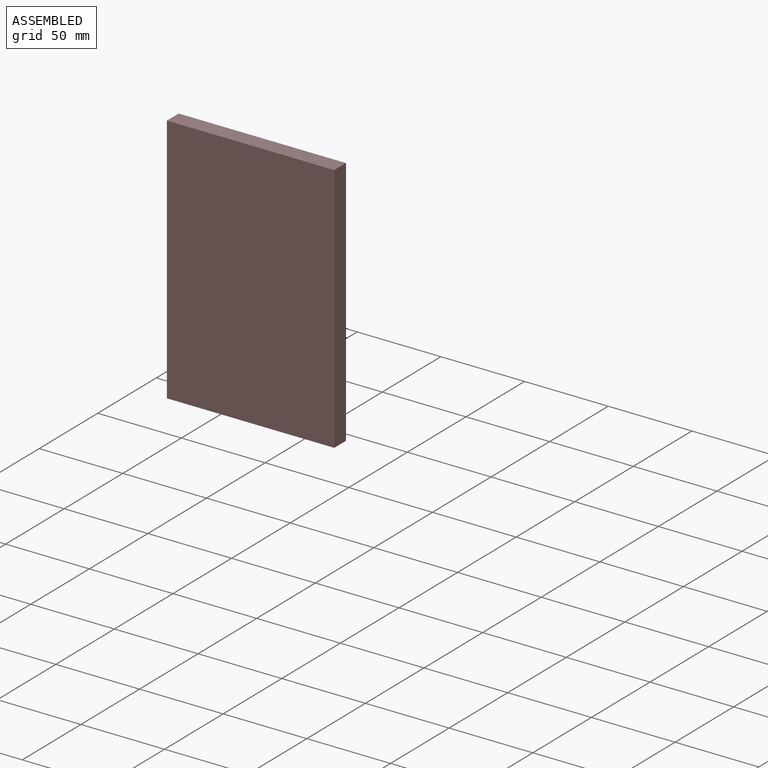
[diagram: assembled view]
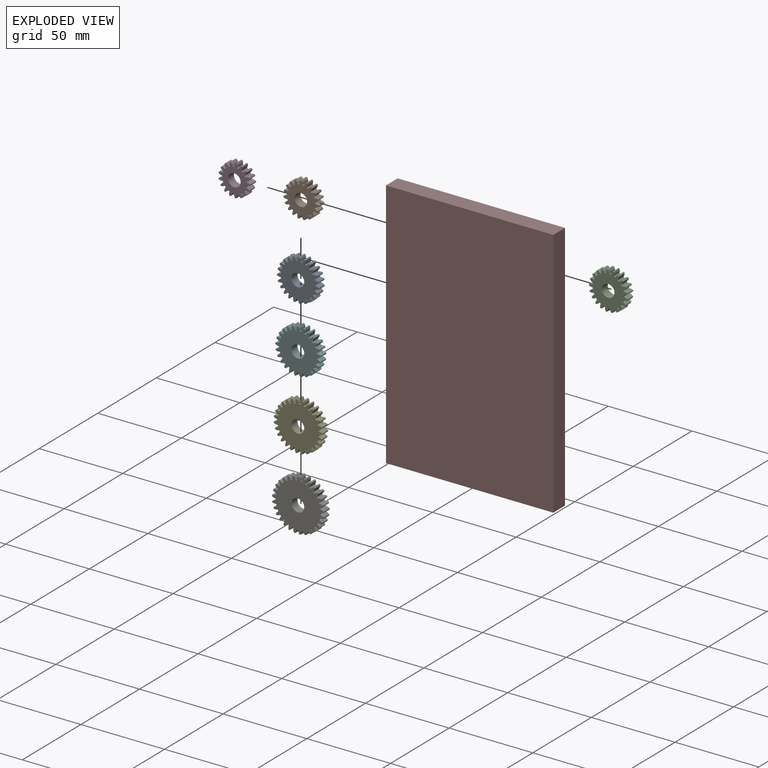
[diagram: exploded view]
GUIDED TOUR — MATED ASSEMBLY (Onshape document 5774c9e2e4b0199757aebff8, AutoMate assembly 5774c9e2e4b0199757aebff8_927d8f8215b882e46c53c789_11457338b5771209f72d90a7_default)

This assembly has 8 components, labeled P0..P7 below (a component is one placed occurrence of a part; the same part can appear more than once), held together by 7 mates. A mate is a constraint between two components; its type names the relative motion it leaves free:
  REVOLUTE — leaves rotation about the listed axis free (a hinge).
Axis/direction vectors are unit vectors and 'through' points are millimeter coordinates, both in the assembly's world frame.

MATES
  1. REVOLUTE "Revolute 1": P7 <-> P3, axis (0.000, 1.000, 0.000) through (-74.08, -13.23, 81.41) mm
  2. REVOLUTE "Revolute 4": P7 <-> P0, axis (0.000, 1.000, 0.000) through (-36.08, -13.23, 59.41) mm
  3. REVOLUTE "Revolute 3": P7 <-> P2, axis (0.000, -1.000, 0.000) through (-36.08, -13.23, 81.41) mm
  4. REVOLUTE "Revolute 6": P7 <-> P4, axis (0.000, 1.000, 0.000) through (-36.08, -13.23, 9.41) mm
  5. REVOLUTE "Revolute 7": P7 <-> P6, axis (0.000, -1.000, 0.000) through (-36.08, -13.23, -18.59) mm
  6. REVOLUTE "Revolute 2": P7 <-> P1, axis (0.000, -1.000, 0.000) through (-56.08, -13.23, 81.41) mm
  7. REVOLUTE "Revolute 5": P7 <-> P5, axis (0.000, 1.000, 0.000) through (-36.08, -13.23, 35.41) mm

ASSEMBLY ORDER
  1. P3 — the base component [order verified]
  2. P1 [order verified]
  3. P2 [order verified]
  4. P0 [order verified]
  5. P5 [order verified]
  6. P4 [order verified]
  7. P6 [order verified]
  8. P7 [order verified]
(P1 verified with a relaxed clearance tolerance: the source model stores slight part interference there.)
Order-tag legend:
  [order verified] — this step's position reverses a verified removal order: the component was checked to insert without passing through the ones already placed.

Of the 8 components, 1 carries the full construction recipe — the FeatureScript program that regenerates the part's solid from scratch; the rest are supplied as boundary geometry only.
Each toured component is shown spotlighted twice — in the assembled view, then in the exploded view, where a leader line traces a displaced component back to its assembled socket (saturated green if recipe-attached, orange if geometry-only; every other component desaturated gray) — followed by its recipe or geometry summary and the mates that hold it.
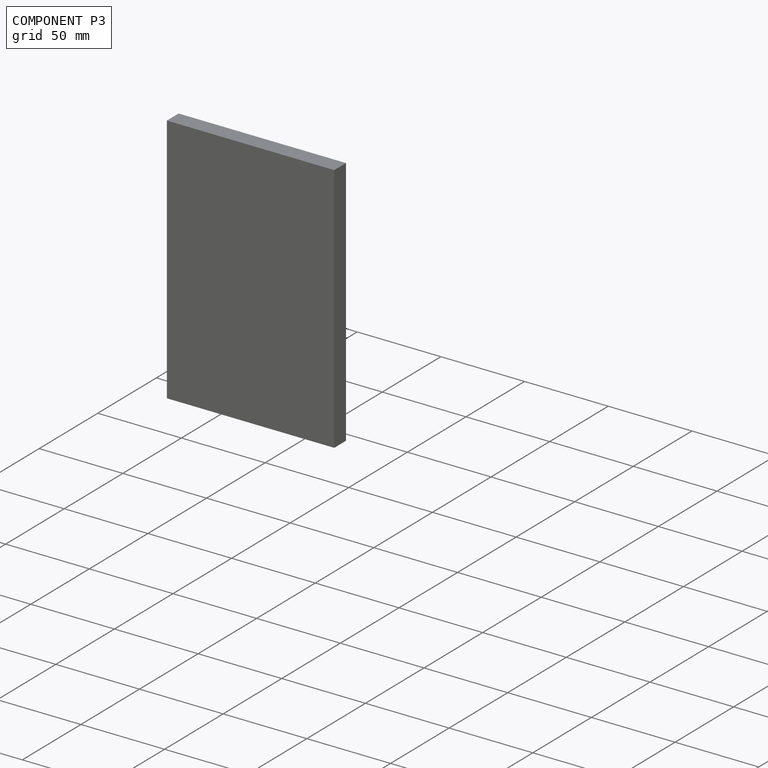
[diagram: component P3 — assembled]
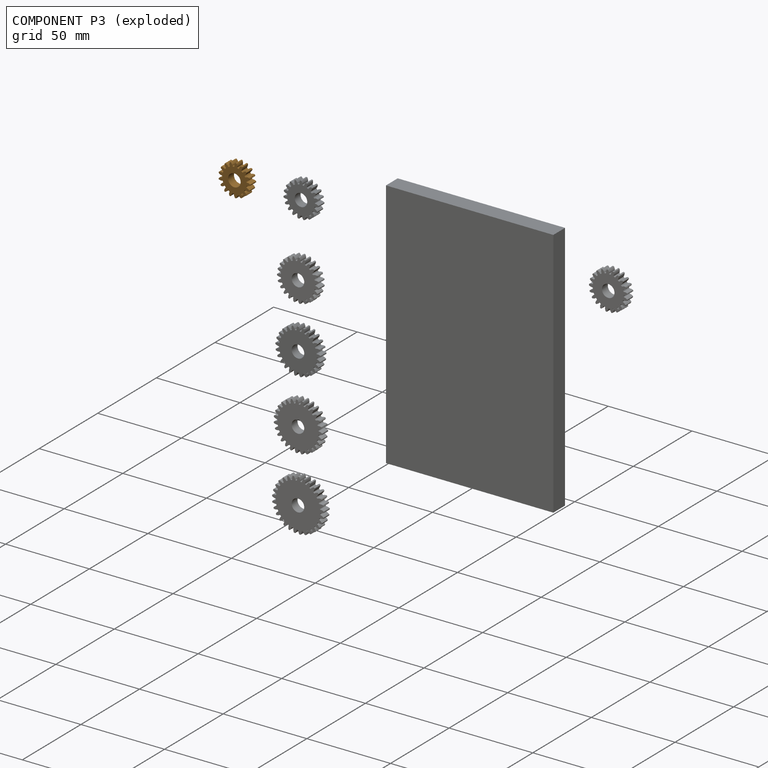
[diagram: component P3 — exploded]
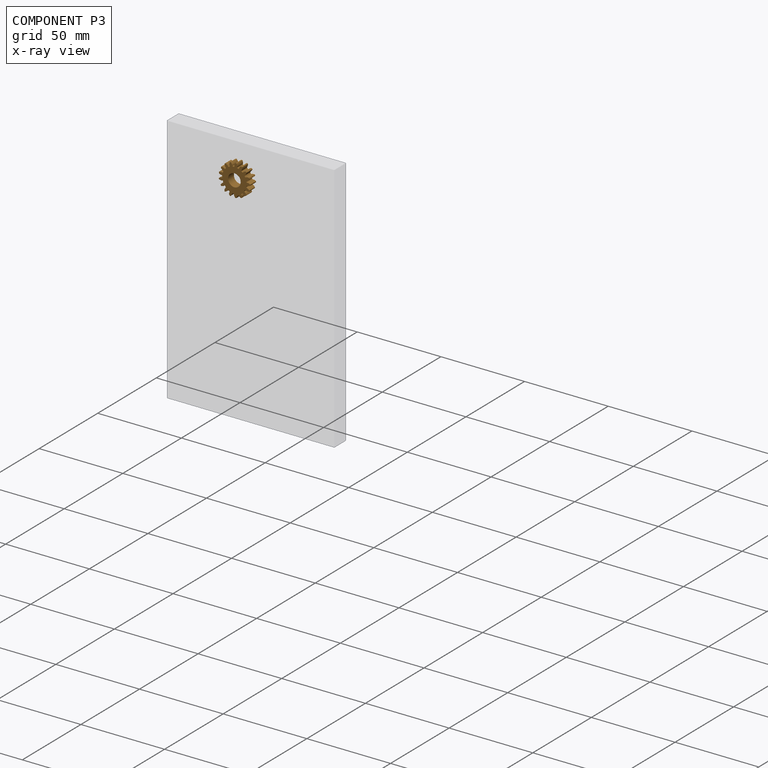
[diagram: component P3 — x-ray view]
COMPONENT P3 — geometry summary (no construction recipe available for this part):
  bounding box: 19.0 x 18.9 x 5.0 mm
  B-rep topology: 1 solid, 105 faces, 618 edges
  volume: 885 mm^3 (49% of its bounding box)
  symmetry: 2-fold rotationally symmetric about the x axis; mirror-symmetric across its y mid-plane, z mid-plane
Held by: REVOLUTE mate "Revolute 1" to P7.
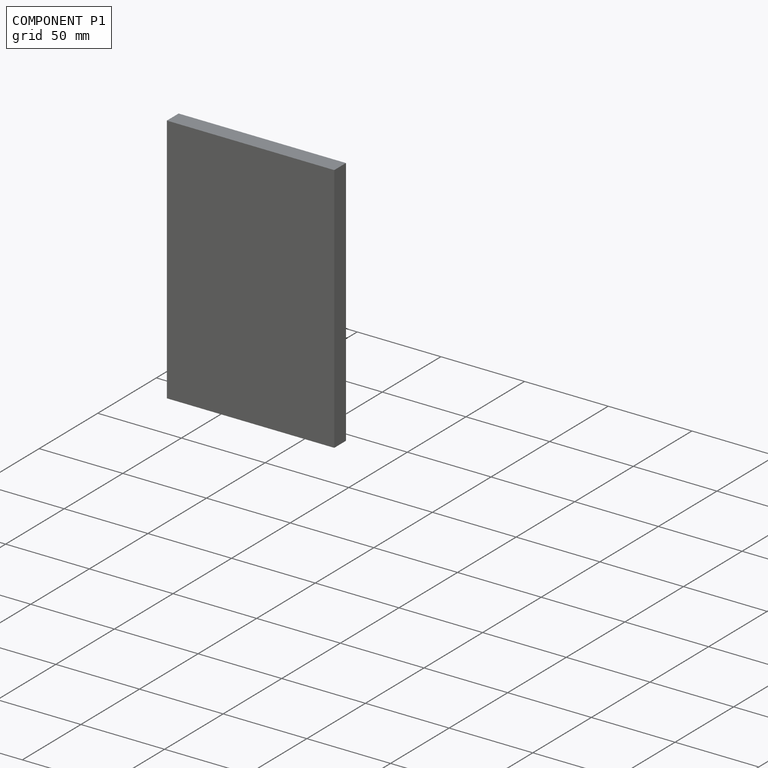
[diagram: component P1 — assembled]
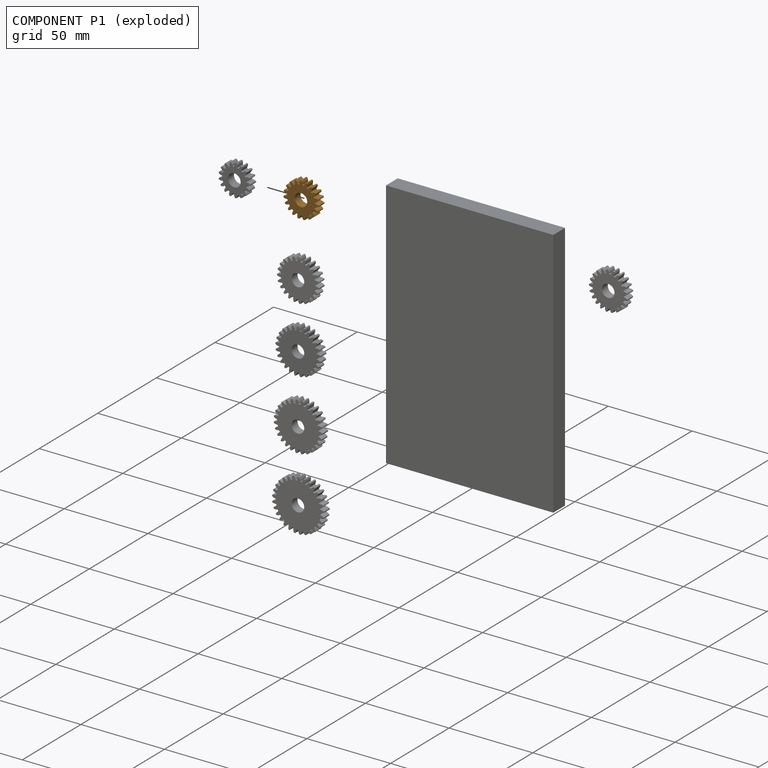
[diagram: component P1 — exploded]
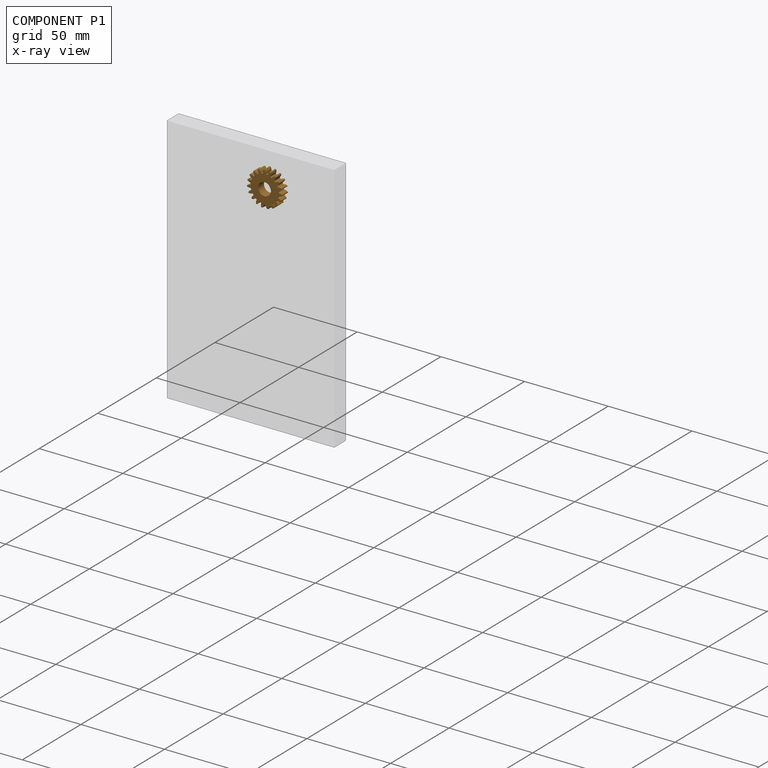
[diagram: component P1 — x-ray view]
COMPONENT P1 — geometry summary (no construction recipe available for this part):
  bounding box: 21.0 x 20.9 x 5.0 mm
  B-rep topology: 1 solid, 117 faces, 690 edges
  volume: 1165 mm^3 (53% of its bounding box)
  symmetry: 2-fold rotationally symmetric about the x axis; mirror-symmetric across its y mid-plane, z mid-plane
Held by: REVOLUTE mate "Revolute 2" to P7.
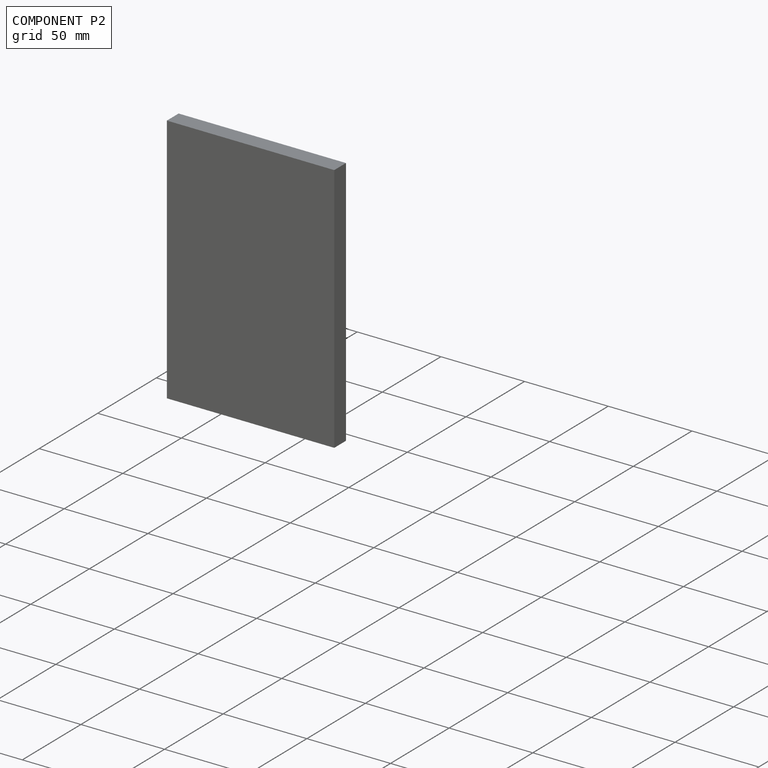
[diagram: component P2 — assembled]
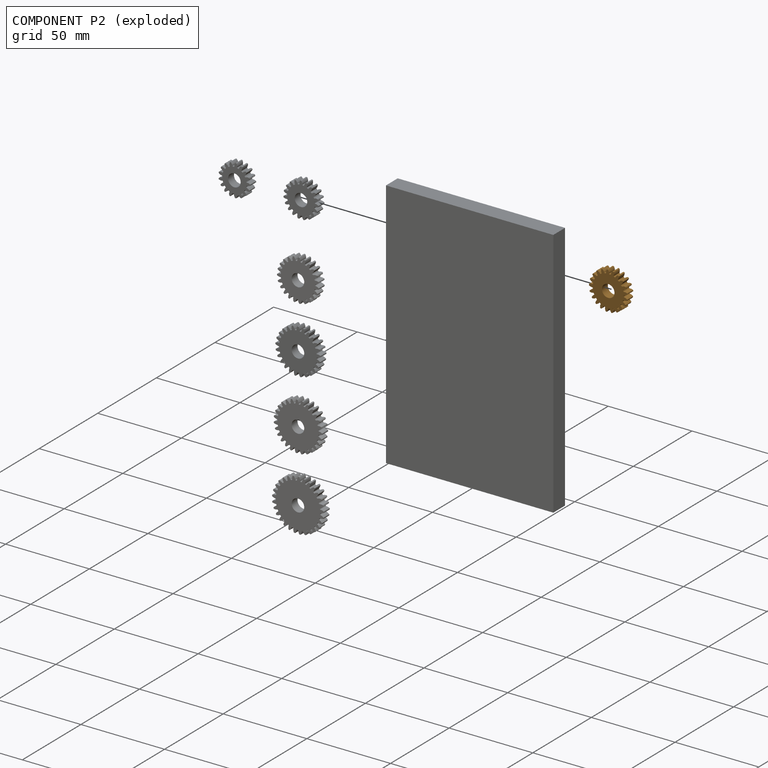
[diagram: component P2 — exploded]
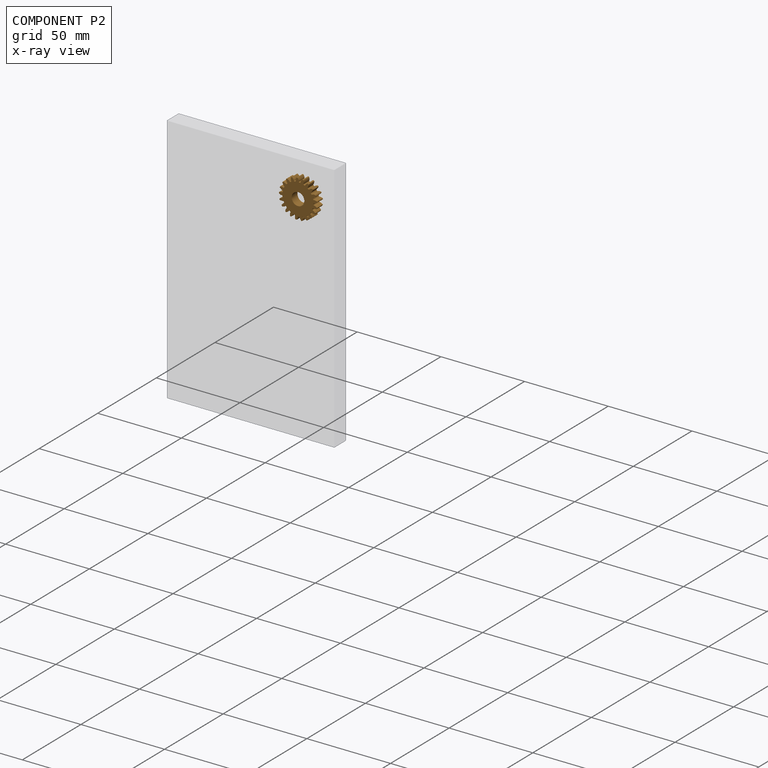
[diagram: component P2 — x-ray view]
COMPONENT P2 — geometry summary (no construction recipe available for this part):
  bounding box: 23.0 x 22.9 x 5.0 mm
  B-rep topology: 1 solid, 129 faces, 762 edges
  volume: 1477 mm^3 (56% of its bounding box)
  symmetry: 2-fold rotationally symmetric about the x axis; revolution-symmetric about the y axis through its bounding-box center; mirror-symmetric across its y mid-plane, z mid-plane
Held by: REVOLUTE mate "Revolute 3" to P7.
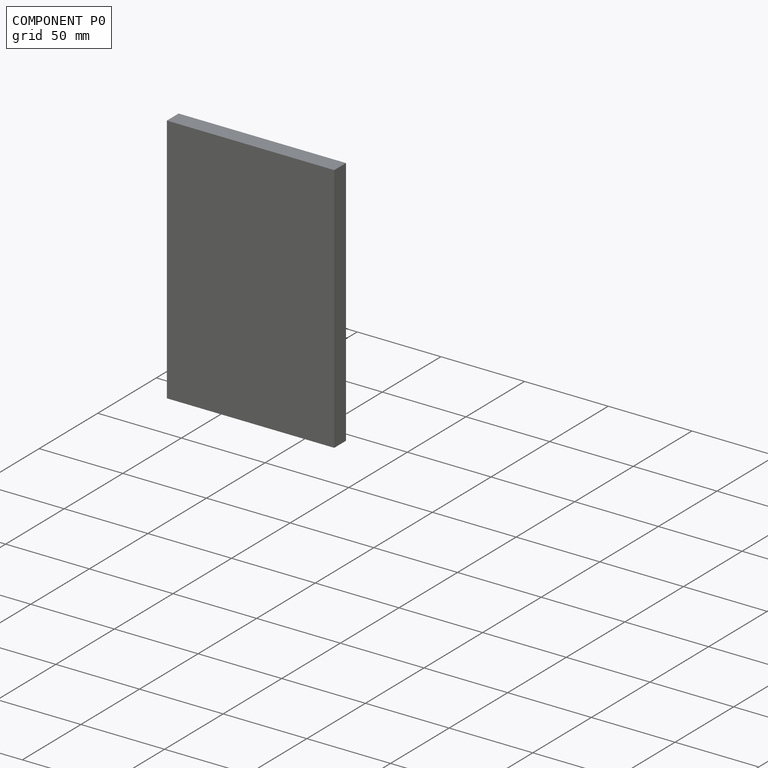
[diagram: component P0 — assembled]
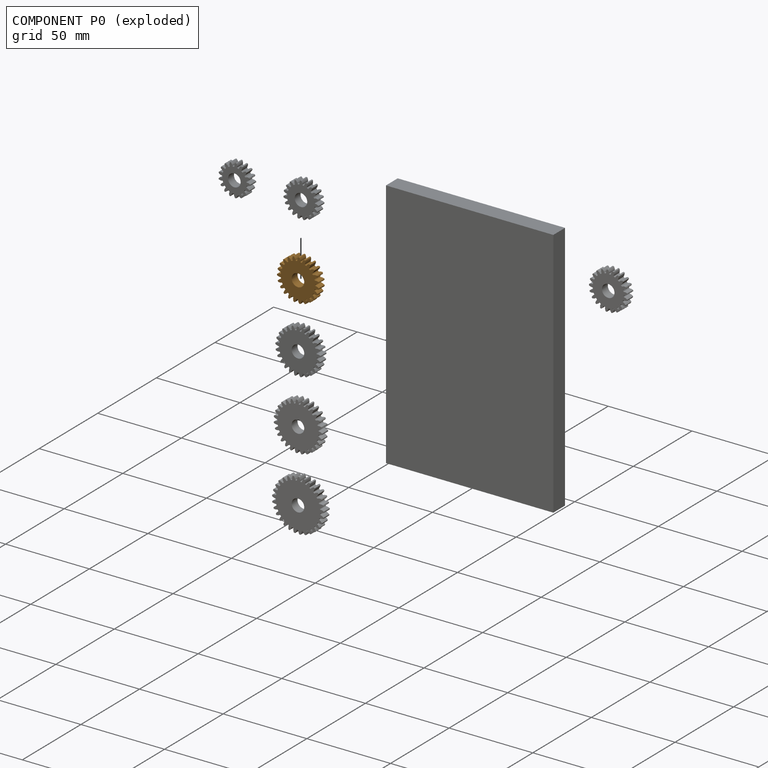
[diagram: component P0 — exploded]
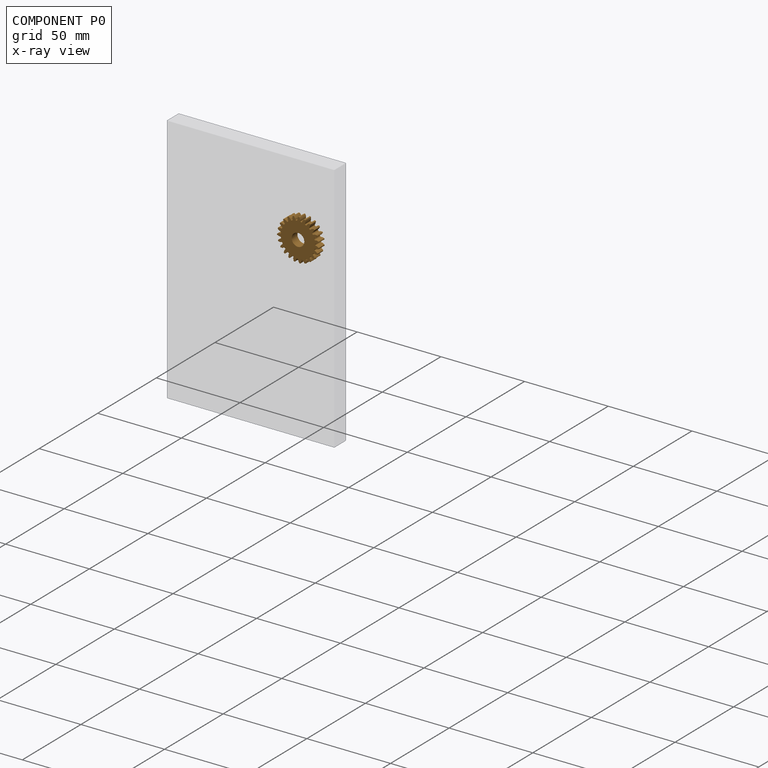
[diagram: component P0 — x-ray view]
COMPONENT P0 — geometry summary (no construction recipe available for this part):
  bounding box: 25.0 x 24.9 x 5.0 mm
  B-rep topology: 1 solid, 141 faces, 834 edges
  volume: 1821 mm^3 (58% of its bounding box)
  symmetry: 2-fold rotationally symmetric about the x axis; mirror-symmetric across its y mid-plane, z mid-plane
Held by: REVOLUTE mate "Revolute 4" to P7.
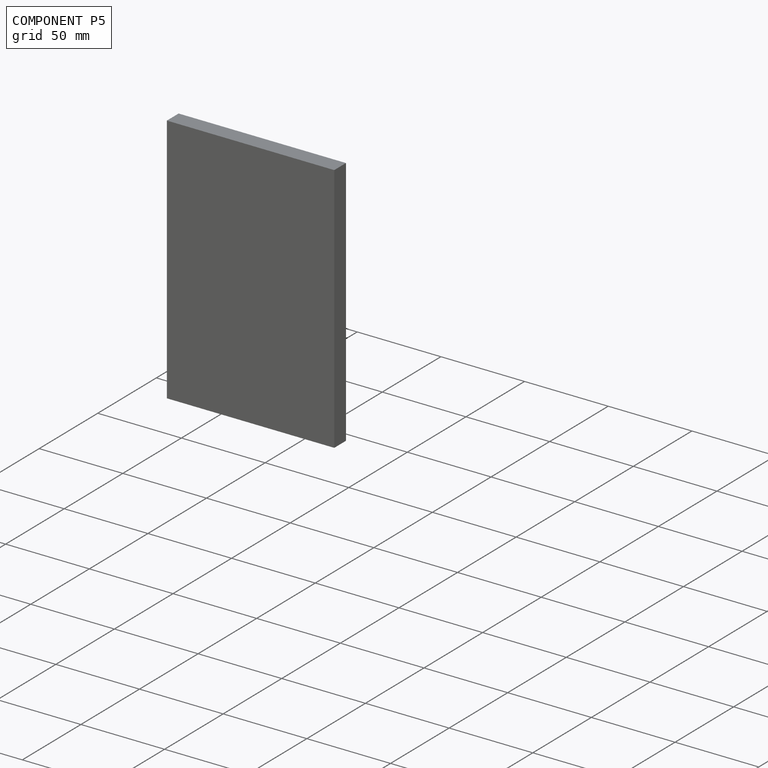
[diagram: component P5 — assembled]
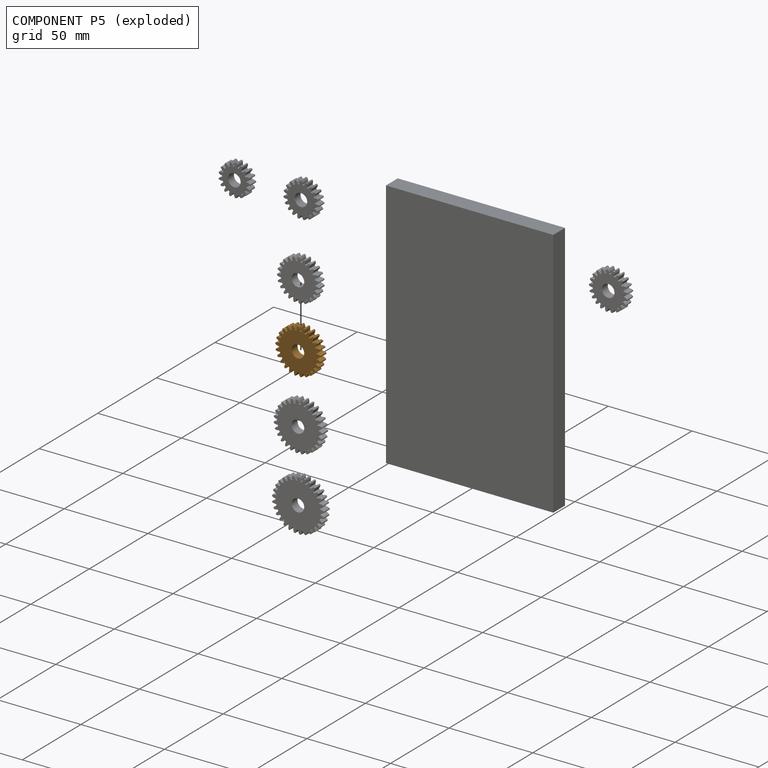
[diagram: component P5 — exploded]
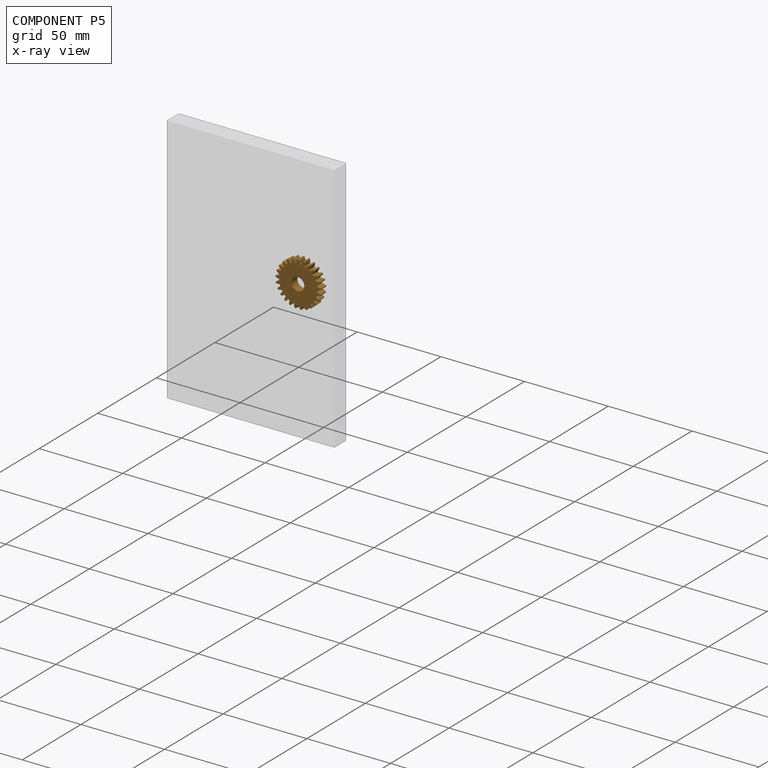
[diagram: component P5 — x-ray view]
COMPONENT P5 — geometry summary (no construction recipe available for this part):
  bounding box: 27.0 x 26.9 x 5.0 mm
  B-rep topology: 1 solid, 153 faces, 906 edges
  volume: 2196 mm^3 (60% of its bounding box)
  symmetry: 2-fold rotationally symmetric about the x axis; mirror-symmetric across its y mid-plane, z mid-plane
Held by: REVOLUTE mate "Revolute 5" to P7.
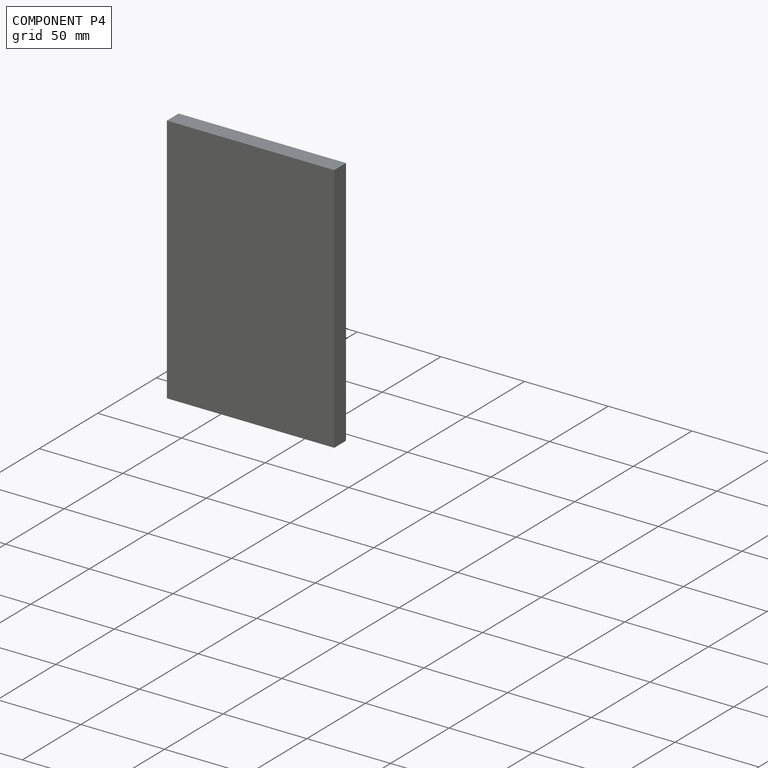
[diagram: component P4 — assembled]
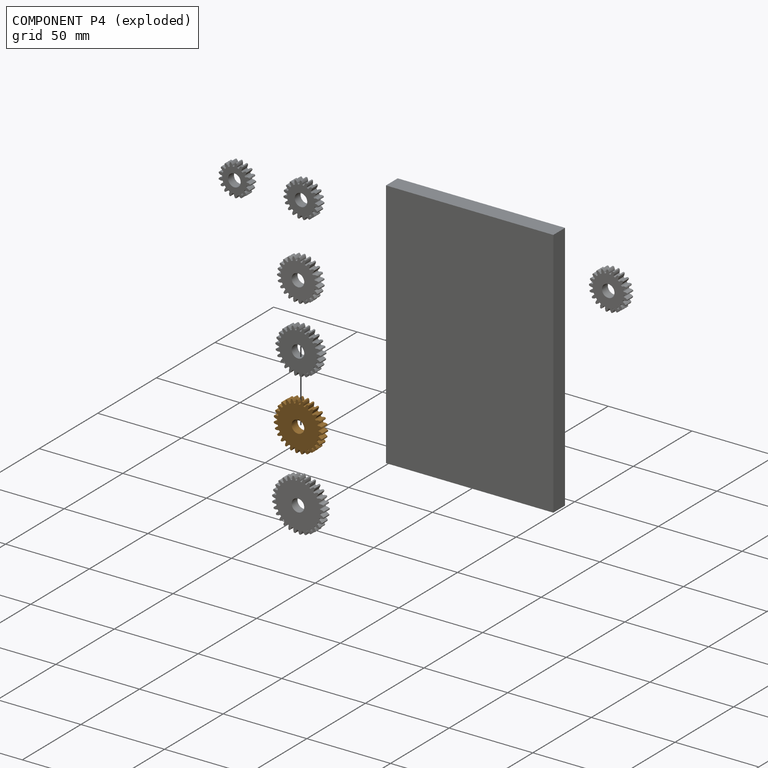
[diagram: component P4 — exploded]
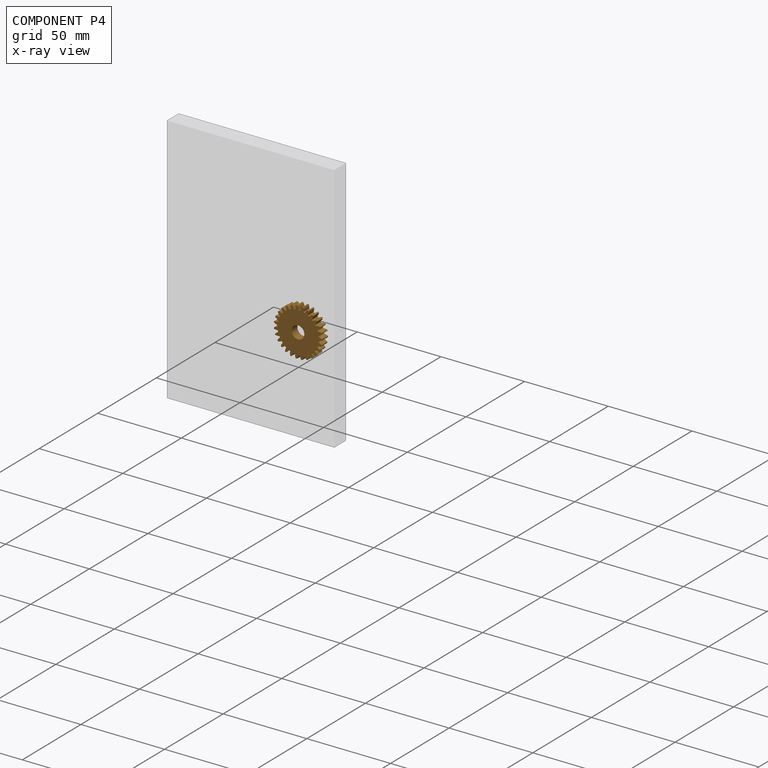
[diagram: component P4 — x-ray view]
COMPONENT P4 — geometry summary (no construction recipe available for this part):
  bounding box: 29.0 x 28.9 x 5.0 mm
  B-rep topology: 1 solid, 165 faces, 978 edges
  volume: 2603 mm^3 (62% of its bounding box)
  symmetry: 2-fold rotationally symmetric about the x axis; 3-fold rotationally symmetric about the y axis; mirror-symmetric across its y mid-plane, z mid-plane
Held by: REVOLUTE mate "Revolute 6" to P7.
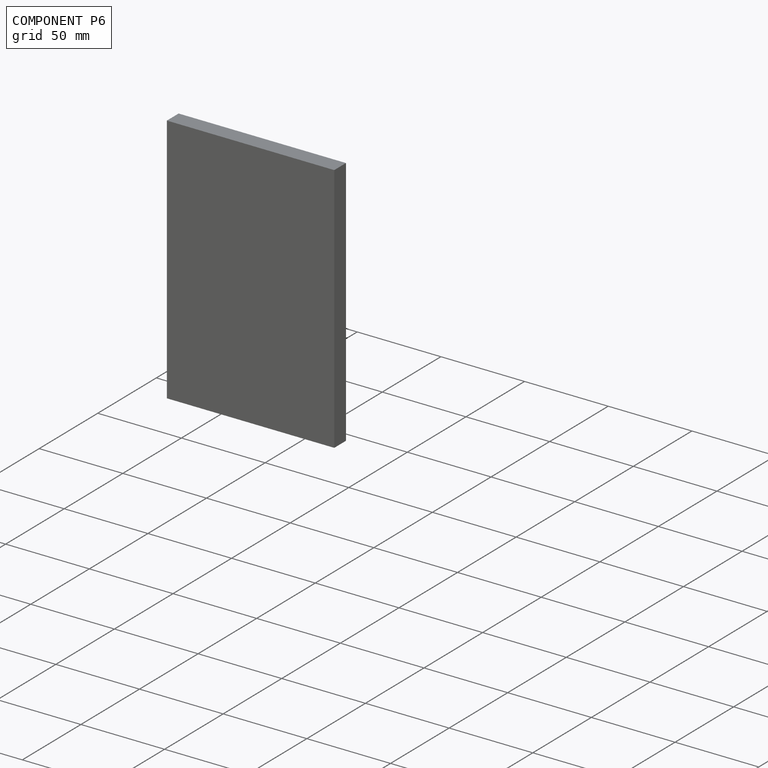
[diagram: component P6 — assembled]
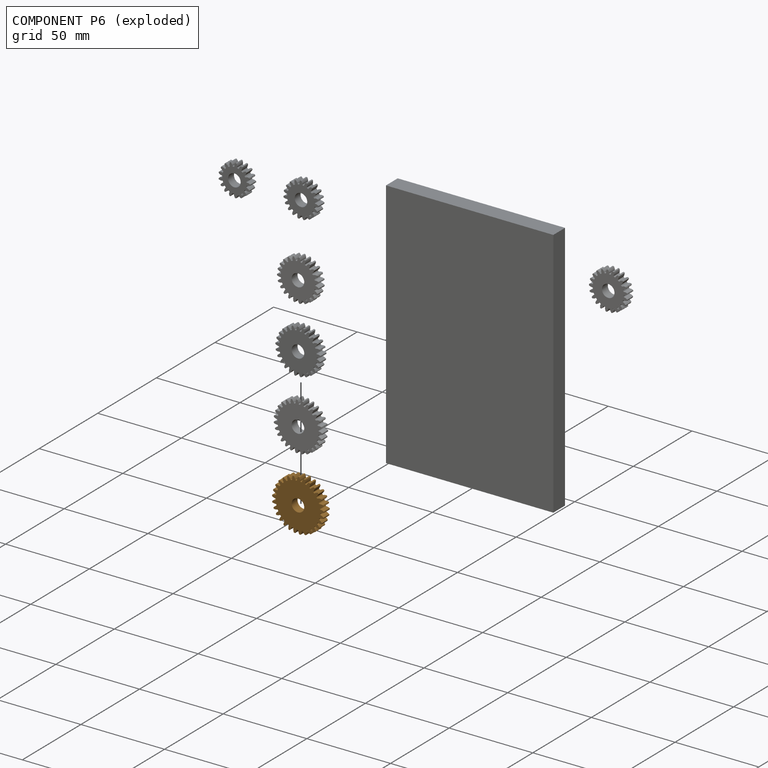
[diagram: component P6 — exploded]
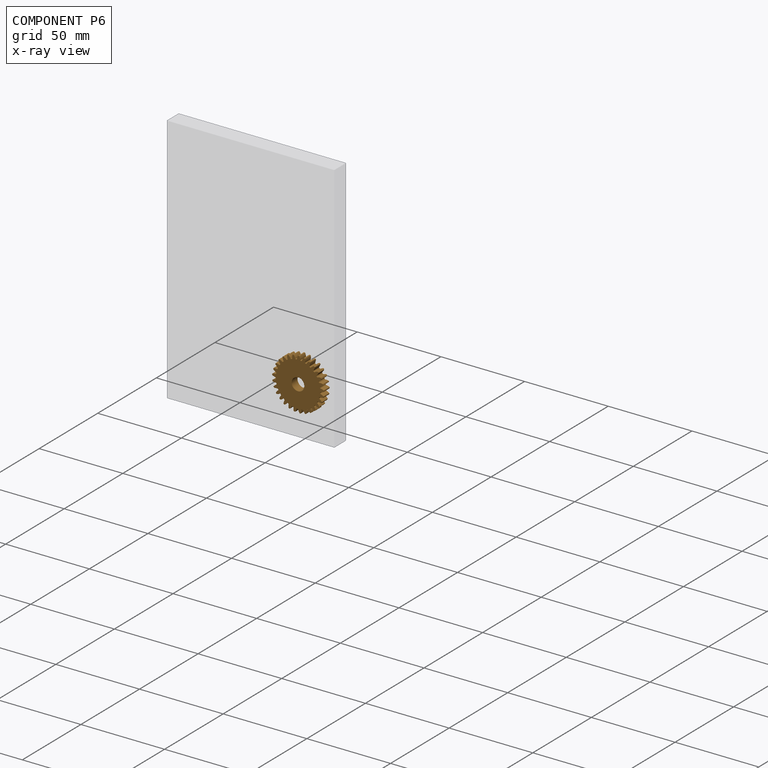
[diagram: component P6 — x-ray view]
COMPONENT P6 — geometry summary (no construction recipe available for this part):
  bounding box: 31.0 x 30.9 x 5.0 mm
  B-rep topology: 1 solid, 177 faces, 1050 edges
  volume: 3042 mm^3 (63% of its bounding box)
  symmetry: 2-fold rotationally symmetric about the x axis; mirror-symmetric across its y mid-plane, z mid-plane
Held by: REVOLUTE mate "Revolute 7" to P7.
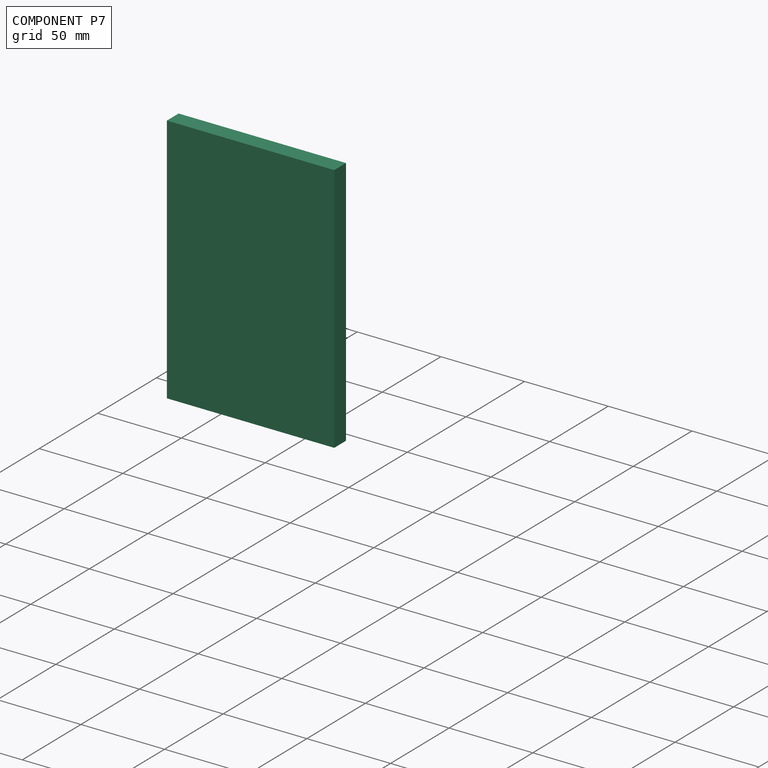
[diagram: component P7 — assembled]
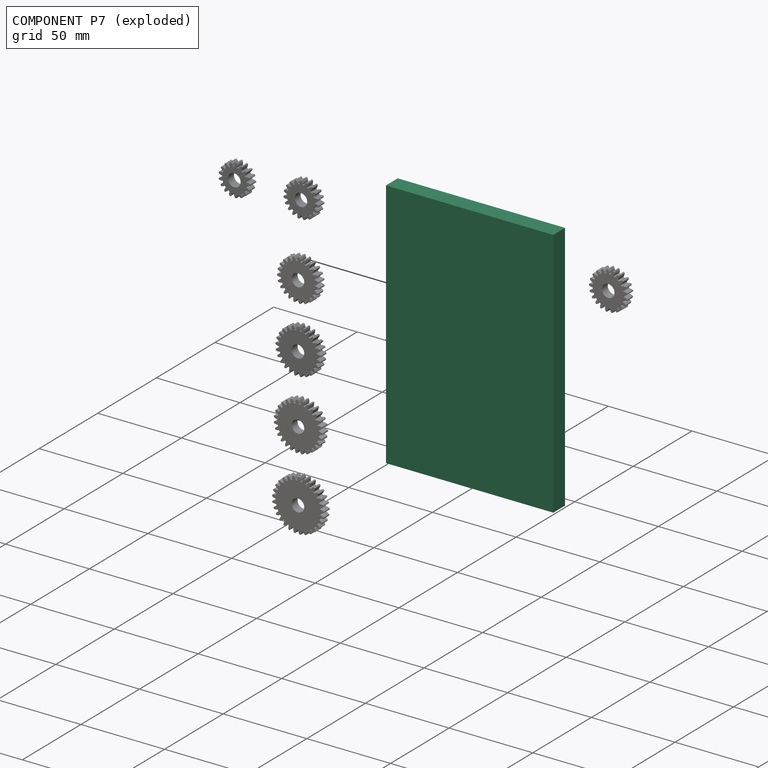
[diagram: component P7 — exploded]
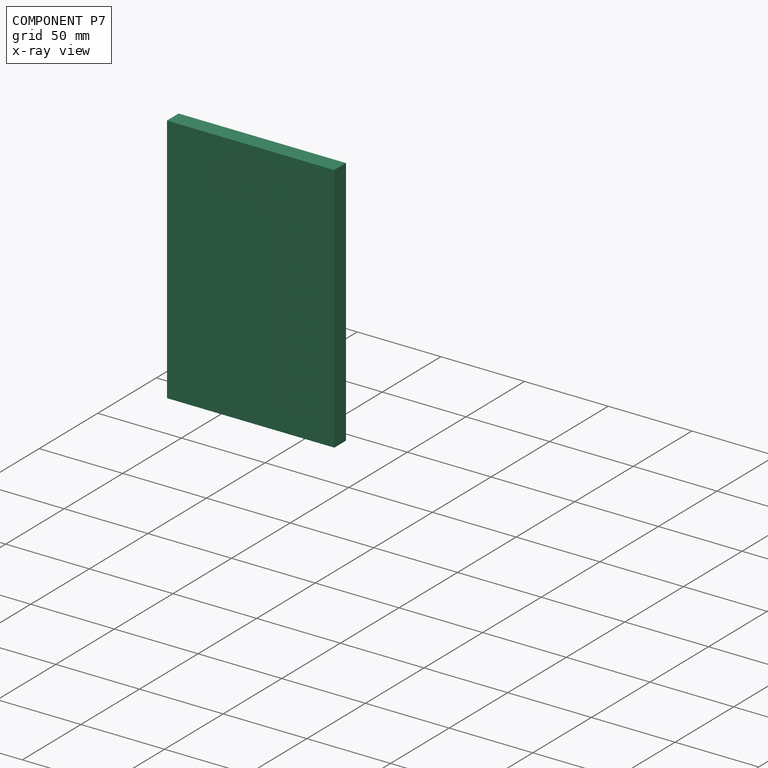
[diagram: component P7 — x-ray view]
COMPONENT P7 — recipe-attached (CADFS 00188021, mesh-verified: the recipe's output STEP matches this component's geometry to below the mesh-comparison resolution (tessellation chordal tolerance ~0.273 mm)).
Held by: REVOLUTE mate "Revolute 1" to P3; REVOLUTE mate "Revolute 4" to P0; REVOLUTE mate "Revolute 3" to P2; REVOLUTE mate "Revolute 6" to P4; REVOLUTE mate "Revolute 7" to P6; REVOLUTE mate "Revolute 2" to P1; REVOLUTE mate "Revolute 5" to P5.
Construction recipe (FeatureScript — the CAD program that rebuilds this solid; sketch coordinates are in the units given by the * unit suffixes, e.g. mm):

FeatureScript 1511;
import(path : "onshape/std/geometry.fs", version : "1511.0");
import(path : "onshape/std/common.fs", version : "1511.0");
const mm = millimeter;
const VERTEX = EntityType.VERTEX;
const EDGE = EntityType.EDGE;
const FACE = EntityType.FACE;
const BODY = EntityType.BODY;
function v(x, y){return vector(x, y);}
function OD(order){return orderDisambiguation(order);}
function OSD(set){return originalSetDisambiguation(set);}
function TD(topology){return topologyDisambiguation(topology);}
function TDD(query){return trueDependencyDisambiguation(query);}
function sQuery(a, b, c) {return sketchEntityQuery(a, b, c);}

annotation { "Feature Type Name" : "Feature", "Feature Type Description" : "" }
export const myFeature = defineFeature(function(context is Context, id is Id, definition is map)
    precondition{}
    {
        {
            var Q0;
            Q0=qCreatedBy(makeId("Front.planeOp"),FACE);
            var sketch = newSketch(context, id + "F0", { "sketchPlane" : qUnion([Q0])});
            skLineSegment(sketch, "E0.bottom", {"start": v(-46.92, 108.03) * mm, "end": v(53.08, 108.03) * mm});
            skLineSegment(sketch, "E0.top", {"start": v(-46.92, -41.97) * mm, "end": v(53.08, -41.97) * mm});
            skLineSegment(sketch, "E0.left", {"start": v(-46.92, 108.03) * mm, "end": v(-46.92, -41.97) * mm});
            skLineSegment(sketch, "E0.right", {"start": v(53.08, 108.03) * mm, "end": v(53.08, -41.97) * mm});
            skSolve(sketch);
        }
        {
            var Q0;
            Q0=makeQuery(id+"F0.imprint","IMPRINT",FACE,{"disambiguationData":[TD([[makeQuery(id+"F0.imprint","IMPRINT",EDGE,{"derivedFrom":sQuery(id+"F0.wireOp",EDGE,"E0.bottom")}),-1.0]])]});
            var Q1;
            Q1=qSketchRegion(id+"FP9mmCFv8DciCVo_1",true);
            var Q2;
            Q2=sQuery(id+"F0.wireOp",EDGE,"E0.right");
            var Q3;
            Q3=sQuery(id+"F0.wireOp",EDGE,"E0.bottom");
            var Q4;
            Q4=sQuery(id+"F0.wireOp",EDGE,"E0.top");
            var Q5;
            Q5=sQuery(id+"F0.wireOp",EDGE,"E0.left");
            extrude(context, id + "F1", {"entities" : qUnion([Q0, Q1]), "surfaceEntities" : qUnion([Q2, Q3, Q4, Q5]), "depth" : 10 * mm});
        }
        {
            var Q0;
            Q0=makeQuery(id+"F1.opExtrude","CAP_FACE",FACE,{"disambiguationData":[OSD([sQuery(id+"F0.wireOp",EDGE,"E0.bottom"),sQuery(id+"F0.wireOp",EDGE,"E0.top"),sQuery(id+"F0.wireOp",EDGE,"E0.left"),sQuery(id+"F0.wireOp",EDGE,"E0.right")])],"isStart":true});
            var sketch = newSketch(context, id + "F2", { "sketchPlane" : qUnion([Q0])});
            skCircle(sketch, "E1", {"center": v(13.61, 80.84) * mm, "radius": 3.75 * mm});
            skCircle(sketch, "E2", {"center": v(-4.39, 80.84) * mm, "radius": 3.75 * mm});
            skCircle(sketch, "E3", {"center": v(-24.39, 80.84) * mm, "radius": 3.75 * mm});
            skCircle(sketch, "E4", {"center": v(-24.39, 58.84) * mm, "radius": 3.75 * mm});
            skCircle(sketch, "E5", {"center": v(-24.39, 34.84) * mm, "radius": 3.75 * mm});
            skCircle(sketch, "E6", {"center": v(-24.39, 8.84) * mm, "radius": 3.75 * mm});
            skCircle(sketch, "E7", {"center": v(-24.39, -19.16) * mm, "radius": 3.75 * mm});
            skSolve(sketch);
        }
        {
            var Q0;
            Q0=qSketchRegion(id+"F2",true);
            extrude(context, id + "F3", {"entities" : qUnion([Q0]), "operationType" : NewBodyOperationType.ADD, "depth" : 13 * mm});
        }
    });
PROVENANCE & LICENSES
Assembly (occurrences, transforms, mates, per-part STEP geometry): AutoMate dataset, Zenodo record 7776208, CC0.
Construction recipes: CADFS (HuggingFace VladPyatov/CADFS, CC-BY-4.0, layered over the ABC dataset), FeatureScript reconstruction programs keyed by ABC model id.
Join: ABC meta listings map ABC model id -> Onshape documentId; within a shared document, parts are matched by geometric signature (bounding-box dims + volume at 0.1% relative tolerance, exact B-rep face/solid counts).
Verification: 1 of this assembly's 8 components carries a recipe attachment, and every attachment is mesh-verified: the CADFS STEP and the AutoMate member STEP were compared as meshes in their shared local frame (symmetric sampled-point-to-mesh distance); worst across the 1 attachment: below the mesh-comparison resolution (tessellation chordal tolerance ~0.273 mm) on a 182 mm part.
Renders: orthographic iso camera (az 35 / el 25); the floor grid conveys scale (grid pitch printed in each image; no ruler). In the exploded view each component is displaced by its stored offset vector: the offsets alone carry the explosion direction (mate normal/axis signs are not orientation cues and do not encode it), and separation distances are assigned per mate-chain, not proportionally to assembly-order depth.
